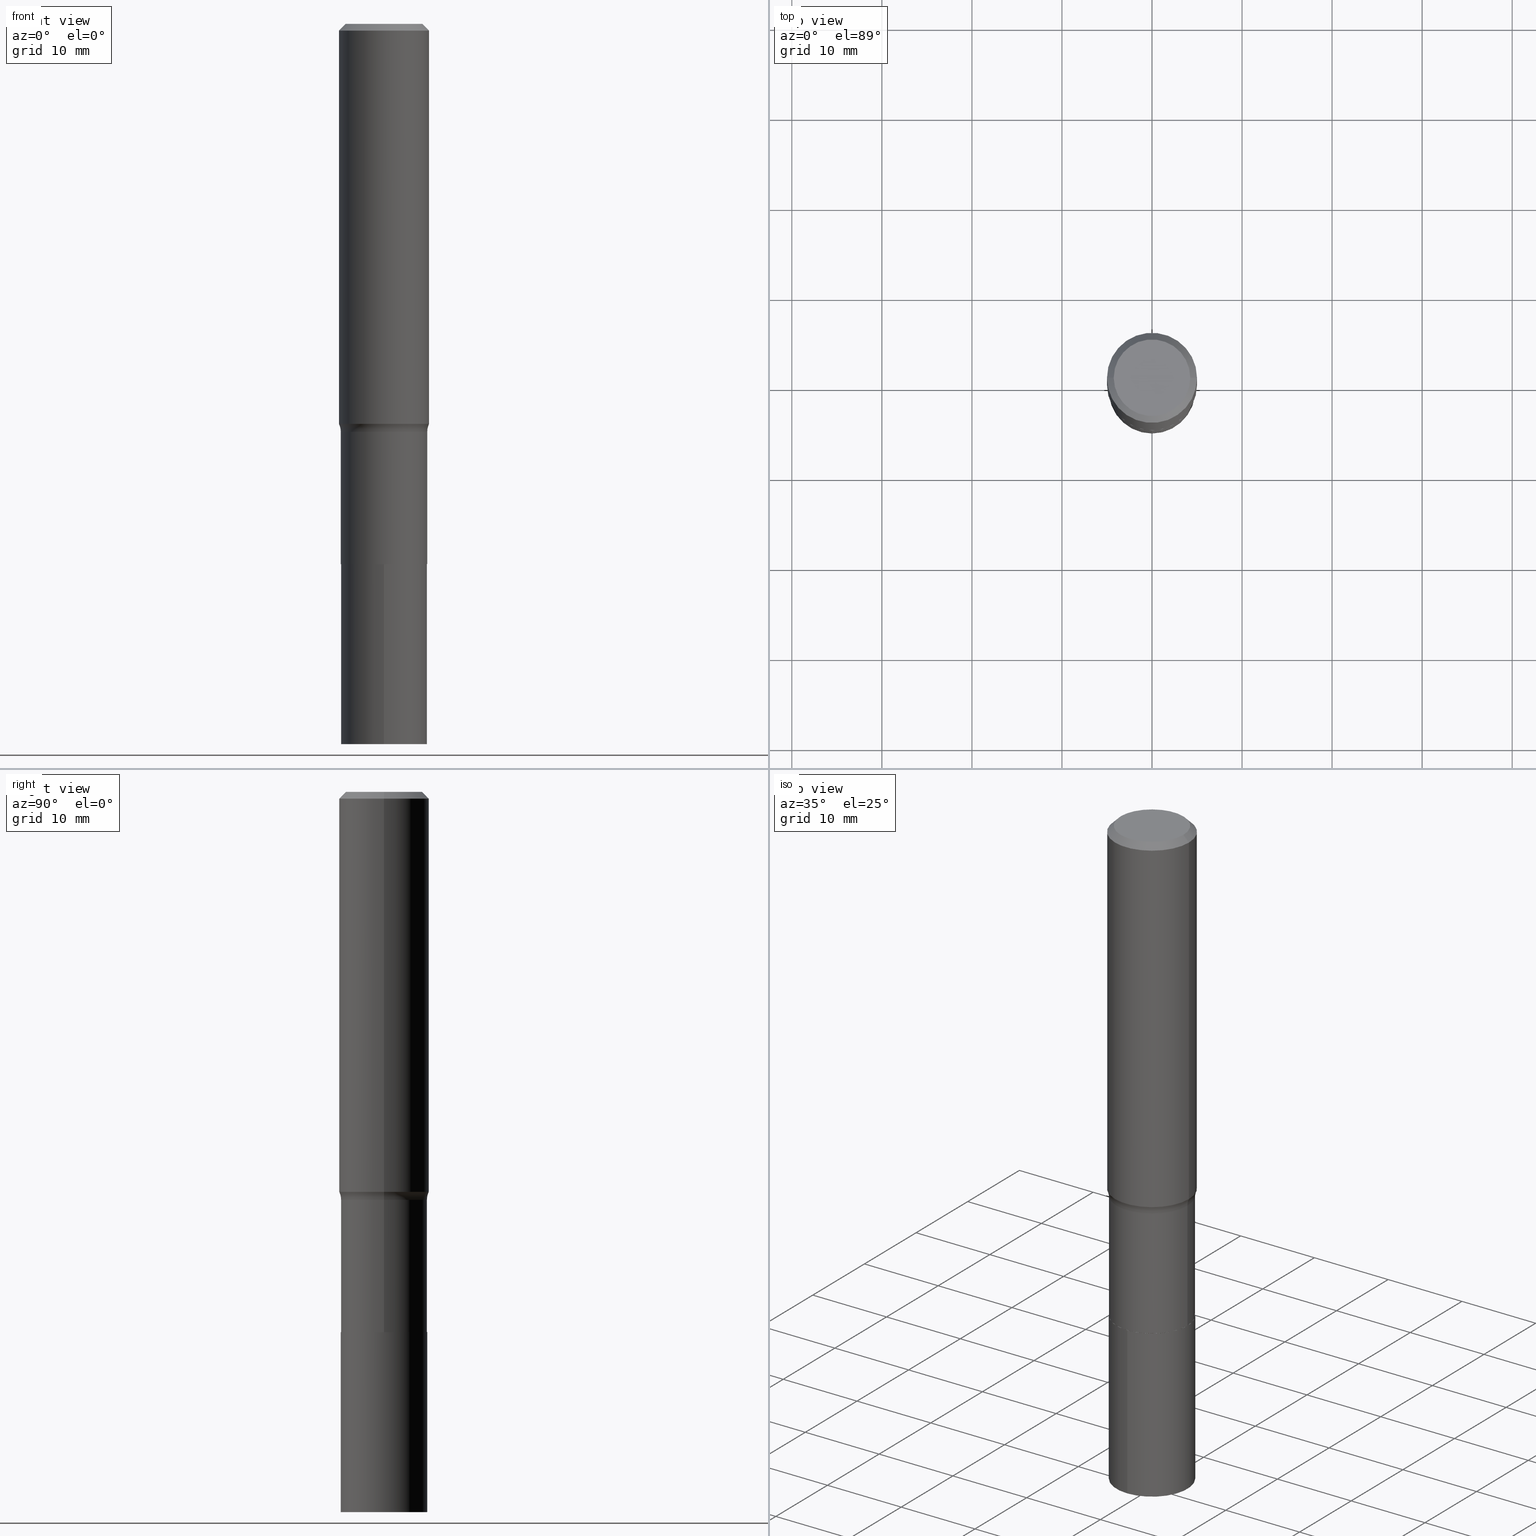
[diagram: canonical four-view strip — front | top / right | iso, engineering-drawing reading convention]
A machine part, canonical four-view strip (front | top / right | iso — engineering-drawing reading convention). The complete STEP part file that produces these views, byte-faithful:
ISO-10303-21;
HEADER;
FILE_DESCRIPTION (( 'STEP AP203' ),
    '1' );
FILE_NAME ('67143.STEP',
    '2024-04-19T16:01:06',
    ( '' ),
    ( '' ),
    'SwSTEP 2.0',
    'SolidWorks 2023',
    '' );
FILE_SCHEMA (( 'CONFIG_CONTROL_DESIGN' ));
ENDSEC;

DATA;
#1 = DIRECTION ( 'NONE',  ( -6.982962677686265922E-15, -1.000000000000000000, 2.890844437739961472E-15 ) ) ;
#2 = DATE_AND_TIME ( #66, #334 ) ;
#3 = PRODUCT_DEFINITION_SHAPE ( 'NONE', 'NONE',  #146 ) ;
#4 = CARTESIAN_POINT ( 'NONE',  ( -0.1889999999999999458, 1.342925770586588966E-15, -9.296787320581769859E-30 ) ) ;
#5 = ADVANCED_FACE ( 'NONE', ( #377 ), #376, .F. ) ;
#6 = CARTESIAN_POINT ( 'NONE',  ( 1.342925770586666472E-15, 0.1889999999999917579, -2.362600000000000477 ) ) ;
#7 = CIRCLE ( 'NONE', #270, 0.1884999999999999731 ) ;
#8 = CIRCLE ( 'NONE', #87, 0.1889999999999999736 ) ;
#9 = DIRECTION ( 'NONE',  ( 1.000000000000000000, -6.982962677686269077E-15, 0.000000000000000000 ) ) ;
#10 = CALENDAR_DATE ( 2024, 19, 4 ) ;
#11 = EDGE_CURVE ( 'NONE', #343, #61, #7, .T. ) ;
#12 = ADVANCED_FACE ( 'NONE', ( #380 ), #207, .F. ) ;
#13 = CONICAL_SURFACE ( 'NONE', #332, 0.1884999999999999731, 0.7853981633975507526 ) ;
#14 = AXIS2_PLACEMENT_3D ( 'NONE', #42, #322, #431 ) ;
#15 = VECTOR ( 'NONE', #267, 39.37007874015748143 ) ;
#16 = ORIENTED_EDGE ( 'NONE', *, *, #352, .T. ) ;
#17 = ORIENTED_EDGE ( 'NONE', *, *, #225, .T. ) ;
#18 = DIRECTION ( 'NONE',  ( 1.000000000000000000, -6.982962677686264344E-15, 0.000000000000000000 ) ) ;
#19 = CC_DESIGN_PERSON_AND_ORGANIZATION_ASSIGNMENT ( #242, #390, ( #250 ) ) ;
#20 = CIRCLE ( 'NONE', #14, 0.1889999999999999736 ) ;
#21 = ORIENTED_EDGE ( 'NONE', *, *, #189, .F. ) ;
#22 = CARTESIAN_POINT ( 'NONE',  ( -1.001697619218021790E-46, 1.430158722866389718E-32, 4.096137381448108366E-18 ) ) ;
#23 = EDGE_CURVE ( 'NONE', #237, #425, #371, .T. ) ;
#24 = EDGE_LOOP ( 'NONE', ( #428, #166, #412, #216 ) ) ;
#25 = DIRECTION ( 'NONE',  ( -2.445468806185136597E-29, 3.491481338843145583E-15, 1.000000000000000000 ) ) ;
#26 = DIRECTION ( 'NONE',  ( -2.445468806185136597E-29, 3.491481338843145583E-15, 1.000000000000000000 ) ) ;
#27 = CIRCLE ( 'NONE', #295, 0.1673224999999999851 ) ;
#28 = CARTESIAN_POINT ( 'NONE',  ( 0.000000000000000000, 0.000000000000000000, 0.000000000000000000 ) ) ;
#29 = DIRECTION ( 'NONE',  ( -2.446001586434224769E-29, 3.490718367202482243E-15, 1.000000000000000000 ) ) ;
#30 = CARTESIAN_POINT ( 'NONE',  ( 1.342925770586646750E-15, 0.1889999999999917302, -2.362600000000000477 ) ) ;
#31 = ORIENTED_EDGE ( 'NONE', *, *, #434, .T. ) ;
#32 = CARTESIAN_POINT ( 'NONE',  ( 7.220858017463202479E-31, -1.030947152326915623E-16, -0.02952750000000016473 ) ) ;
#33 = VERTEX_POINT ( 'NONE', #6 ) ;
#34 = DIRECTION ( 'NONE',  ( 2.445468806185136597E-29, -3.491481338843145583E-15, -1.000000000000000000 ) ) ;
#35 = AXIS2_PLACEMENT_3D ( 'NONE', #109, #328, #38 ) ;
#36 = CYLINDRICAL_SURFACE ( 'NONE', #272, 0.1889999999999999458 ) ;
#37 = DIRECTION ( 'NONE',  ( 1.000000000000000000, -6.982962677686266711E-15, 0.000000000000000000 ) ) ;
#38 = DIRECTION ( 'NONE',  ( -1.000000000000000000, 7.105427357600997914E-15, 0.000000000000000000 ) ) ;
#39 = UNCERTAINTY_MEASURE_WITH_UNIT (LENGTH_MEASURE( 1.000000000000000082E-05 ), #88, 'distance_accuracy_value', 'NONE');
#40 = APPROVAL ( #446, 'UNSPECIFIED' ) ;
#41 = FACE_OUTER_BOUND ( 'NONE', #104, .T. ) ;
#42 = CARTESIAN_POINT ( 'NONE',  ( 5.776441867089912090E-29, -8.247228070481394537E-15, -2.362100000000000311 ) ) ;
#43 = AXIS2_PLACEMENT_3D ( 'NONE', #324, #436, #48 ) ;
#44 = LOCAL_TIME ( 12, 1, 6.000000000000000000, #330 ) ;
#45 = EDGE_CURVE ( 'NONE', #193, #314, #223, .T. ) ;
#46 = AXIS2_PLACEMENT_3D ( 'NONE', #382, #379, #246 ) ;
#47 = PLANE ( 'NONE',  #341 ) ;
#48 = DIRECTION ( 'NONE',  ( -6.982962677686265922E-15, -1.000000000000000000, 2.890844437739961472E-15 ) ) ;
#49 = EDGE_CURVE ( 'NONE', #373, #229, #151, .T. ) ;
#50 = EDGE_LOOP ( 'NONE', ( #174, #462, #351, #414 ) ) ;
#51 = ORIENTED_EDGE ( 'NONE', *, *, #11, .F. ) ;
#52 = DIRECTION ( 'NONE',  ( -2.445468806185136597E-29, 3.491481338843145583E-15, 1.000000000000000000 ) ) ;
#53 = DIRECTION ( 'NONE',  ( -0.7071067811865457964, 2.468850131082238917E-15, -0.7071067811865492381 ) ) ;
#54 = AXIS2_PLACEMENT_3D ( 'NONE', #345, #26, #308 ) ;
#55 = APPROVAL_PERSON_ORGANIZATION ( #197, #40, #56 ) ;
#56 = APPROVAL_ROLE ( '' ) ;
#57 = CARTESIAN_POINT ( 'NONE',  ( -0.1673224999999999851, 1.219954130253505263E-15, 4.096137381439757534E-18 ) ) ;
#58 = PRODUCT_RELATED_PRODUCT_CATEGORY ( 'detail', '', ( #250 ) ) ;
#59 = ORIENTED_EDGE ( 'NONE', *, *, #403, .F. ) ;
#60 = LINE ( 'NONE', #30, #186 ) ;
#61 = VERTEX_POINT ( 'NONE', #74 ) ;
#62 = DATE_TIME_ROLE ( 'creation_date' ) ;
#63 = DIRECTION ( 'NONE',  ( 1.000000000000000000, -6.982962677686265922E-15, 0.000000000000000000 ) ) ;
#64 = CONICAL_SURFACE ( 'NONE', #133, 0.1884999999999999731, 0.7853981633975507526 ) ;
#65 = EDGE_LOOP ( 'NONE', ( #170, #138 ) ) ;
#66 = CALENDAR_DATE ( 2024, 19, 4 ) ;
#67 = DIRECTION ( 'NONE',  ( 2.445468806185136597E-29, -3.491481338843145583E-15, -1.000000000000000000 ) ) ;
#68 = ORIENTED_EDGE ( 'NONE', *, *, #175, .T. ) ;
#69 = APPROVAL_ROLE ( '' ) ;
#70 = DIRECTION ( 'NONE',  ( 0.7071067811866199593, -2.468850131083015945E-15, 0.7071067811864750752 ) ) ;
#71 = PERSON ( 'UNSPECIFIED', 'UNSPECIFIED', 'UNSPECIFIED', ('UNSPECIFIED'), ('UNSPECIFIED'), ('UNSPECIFIED') ) ;
#72 = EDGE_LOOP ( 'NONE', ( #226, #135, #281, #98 ) ) ;
#73 = CARTESIAN_POINT ( 'NONE',  ( 0.1884999999999999731, -9.565262275894677852E-15, -2.362600000000000033 ) ) ;
#74 = CARTESIAN_POINT ( 'NONE',  ( -0.1884999999999999731, -6.906951527068917560E-15, -2.362600000000000033 ) ) ;
#75 = APPROVAL_PERSON_ORGANIZATION ( #144, #252, #69 ) ;
#76 = APPROVAL_STATUS ( 'not_yet_approved' ) ;
#77 = DIRECTION ( 'NONE',  ( -2.446001586434225329E-29, 3.490718367202482243E-15, 1.000000000000000000 ) ) ;
#78 = DIRECTION ( 'NONE',  ( -6.982962677686265922E-15, -1.000000000000000000, 2.890844437739961472E-15 ) ) ;
#79 = CARTESIAN_POINT ( 'NONE',  ( -0.1968500000000001082, 1.398703375343757985E-15, -9.682923725166787881E-30 ) ) ;
#80 = DATE_AND_TIME ( #256, #44 ) ;
#81 = VECTOR ( 'NONE', #356, 39.37007874015748143 ) ;
#82 = AXIS2_PLACEMENT_3D ( 'NONE', #413, #160, #232 ) ;
#83 = ORIENTED_EDGE ( 'NONE', *, *, #406, .F. ) ;
#84 = DIRECTION ( 'NONE',  ( -2.445468806185136877E-29, 3.491481338843145188E-15, 1.000000000000000000 ) ) ;
#85 = DIRECTION ( 'NONE',  ( -2.446001586434225329E-29, 3.490718367202482243E-15, 1.000000000000000000 ) ) ;
#86 = AXIS2_PLACEMENT_3D ( 'NONE', #114, #188, #181 ) ;
#87 = AXIS2_PLACEMENT_3D ( 'NONE', #417, #309, #78 ) ;
#88 =( CONVERSION_BASED_UNIT ( 'INCH', #336 ) LENGTH_UNIT ( ) NAMED_UNIT ( #420 ) );
#89 = CARTESIAN_POINT ( 'NONE',  ( 5.777664601493003770E-29, -8.248973811150816829E-15, -2.362600000000000033 ) ) ;
#90 = ADVANCED_FACE ( 'NONE', ( #363 ), #289, .T. ) ;
#91 = CARTESIAN_POINT ( 'NONE',  ( -5.008488096090108951E-47, 7.150793614331948590E-33, 2.048068690724054183E-18 ) ) ;
#92 = CLOSED_SHELL ( 'NONE', ( #161, #12, #90, #358 ) ) ;
#93 = CARTESIAN_POINT ( 'NONE',  ( 5.777664601493003770E-29, -8.248973811150816829E-15, -2.362600000000000033 ) ) ;
#94 = AXIS2_PLACEMENT_3D ( 'NONE', #212, #139, #454 ) ;
#95 = ORIENTED_EDGE ( 'NONE', *, *, #378, .F. ) ;
#96 = DATE_AND_TIME ( #357, #386 ) ;
#97 = DIRECTION ( 'NONE',  ( 1.000000000000000000, -6.982962677686267499E-15, 4.876294436782262290E-29 ) ) ;
#98 = ORIENTED_EDGE ( 'NONE', *, *, #175, .F. ) ;
#99 = FACE_OUTER_BOUND ( 'NONE', #268, .T. ) ;
#100 = ORIENTED_EDGE ( 'NONE', *, *, #406, .T. ) ;
#101 = PERSON_AND_ORGANIZATION_ROLE ( 'creator' ) ;
#102 = DIRECTION ( 'NONE',  ( -6.982962677686265922E-15, -1.000000000000000000, 2.890844437739961472E-15 ) ) ;
#103 = ADVANCED_FACE ( 'NONE', ( #247 ), #36, .T. ) ;
#104 = EDGE_LOOP ( 'NONE', ( #121, #304, #203, #143 ) ) ;
#105 = APPLICATION_PROTOCOL_DEFINITION ( 'international standard', 'config_control_design', 1994, #404 ) ;
#106 = LINE ( 'NONE', #243, #299 ) ;
#107 = ORIENTED_EDGE ( 'NONE', *, *, #240, .F. ) ;
#108 = DIRECTION ( 'NONE',  ( -2.445468806185136597E-29, 3.491481338843145583E-15, 1.000000000000000000 ) ) ;
#109 = CARTESIAN_POINT ( 'NONE',  ( -0.2689999999999999059, -4.317093601167619304E-15, -1.783900000000000263 ) ) ;
#110 = CC_DESIGN_DATE_AND_TIME_ASSIGNMENT ( #361, #150, ( #254 ) ) ;
#111 = CIRCLE ( 'NONE', #369, 0.1968500000000000250 ) ;
#112 = CARTESIAN_POINT ( 'NONE',  ( 0.1968500000000001082, -1.374596203102542397E-15, 9.598753983154305062E-30 ) ) ;
#113 = PERSON_AND_ORGANIZATION_ROLE ( 'classification_officer' ) ;
#114 = CARTESIAN_POINT ( 'NONE',  ( 0.000000000000000000, 0.000000000000000000, 0.000000000000000000 ) ) ;
#115 = MANIFOLD_SOLID_BREP ( 'Body-Move/Copy2[1]', #92 ) ;
#116 = CYLINDRICAL_SURFACE ( 'NONE', #238, 0.1889999999999999736 ) ;
#117 = CC_DESIGN_APPROVAL ( #40, ( #254 ) ) ;
#118 = ORIENTED_EDGE ( 'NONE', *, *, #11, .T. ) ;
#119 = CC_DESIGN_PERSON_AND_ORGANIZATION_ASSIGNMENT ( #329, #113, ( #254 ) ) ;
#120 = MANIFOLD_SOLID_BREP ( 'Body-Move/Copy2[2]', #217 ) ;
#121 = ORIENTED_EDGE ( 'NONE', *, *, #364, .F. ) ;
#122 = AXIS2_PLACEMENT_3D ( 'NONE', #22, #407, #162 ) ;
#123 = DIRECTION ( 'NONE',  ( 1.000000000000000000, -6.982962677686269077E-15, 0.000000000000000000 ) ) ;
#124 = EDGE_CURVE ( 'NONE', #310, #354, #20, .T. ) ;
#125 = LINE ( 'NONE', #375, #15 ) ;
#126 = EDGE_CURVE ( 'NONE', #354, #229, #294, .T. ) ;
#127 = ORIENTED_EDGE ( 'NONE', *, *, #240, .T. ) ;
#128 = DATE_AND_TIME ( #439, #397 ) ;
#129 = FACE_OUTER_BOUND ( 'NONE', #337, .T. ) ;
#130 = EDGE_LOOP ( 'NONE', ( #317, #257, #31, #95 ) ) ;
#131 = AXIS2_PLACEMENT_3D ( 'NONE', #134, #429, #63 ) ;
#132 = CARTESIAN_POINT ( 'NONE',  ( -0.1968500000000000250, 1.271501487869850120E-15, -0.02952750000000016473 ) ) ;
#133 = AXIS2_PLACEMENT_3D ( 'NONE', #303, #25, #18 ) ;
#134 = CARTESIAN_POINT ( 'NONE',  ( 7.220858017463202479E-31, -1.030947152326915623E-16, -0.02952750000000016473 ) ) ;
#135 = ORIENTED_EDGE ( 'NONE', *, *, #290, .T. ) ;
#136 = EDGE_CURVE ( 'NONE', #195, #177, #219, .T. ) ;
#137 = FACE_OUTER_BOUND ( 'NONE', #130, .T. ) ;
#138 = ORIENTED_EDGE ( 'NONE', *, *, #352, .F. ) ;
#139 = DIRECTION ( 'NONE',  ( -2.438088387897960049E-29, 3.491481338843145188E-15, 1.000000000000000000 ) ) ;
#140 = ORIENTED_EDGE ( 'NONE', *, *, #444, .T. ) ;
#141 = AXIS2_PLACEMENT_3D ( 'NONE', #149, #152, #9 ) ;
#142 = DIRECTION ( 'NONE',  ( 1.000000000000000000, -6.982962677686266711E-15, 4.876176775795935793E-29 ) ) ;
#143 = ORIENTED_EDGE ( 'NONE', *, *, #348, .F. ) ;
#144 = PERSON_AND_ORGANIZATION ( #71, #159 ) ;
#145 = DIRECTION ( 'NONE',  ( -2.445468806185136597E-29, 3.491481338843145583E-15, 1.000000000000000000 ) ) ;
#146 = PRODUCT_DEFINITION ( 'UNKNOWN', '', #327, #367 ) ;
#147 = DIRECTION ( 'NONE',  ( -6.982962677686265922E-15, -1.000000000000000000, 2.890844437739961472E-15 ) ) ;
#148 = APPROVAL_DATE_TIME ( #80, #393 ) ;
#149 = CARTESIAN_POINT ( 'NONE',  ( 4.362471803353666187E-29, -6.228453560362288135E-15, -1.783900000000000263 ) ) ;
#150 = DATE_TIME_ROLE ( 'classification_date' ) ;
#151 = CIRCLE ( 'NONE', #141, 0.1889999999999999181 ) ;
#152 = DIRECTION ( 'NONE',  ( -2.445468806185136597E-29, 3.491481338843145583E-15, 1.000000000000000000 ) ) ;
#153 = DIRECTION ( 'NONE',  ( -6.982962677686265922E-15, -1.000000000000000000, 2.890844437739961472E-15 ) ) ;
#154 = CC_DESIGN_PERSON_AND_ORGANIZATION_ASSIGNMENT ( #311, #101, ( #146 ) ) ;
#155 = VECTOR ( 'NONE', #227, 39.37007874015748143 ) ;
#156 = ORIENTED_EDGE ( 'NONE', *, *, #378, .T. ) ;
#157 = ADVANCED_FACE ( 'NONE', ( #251 ), #185, .T. ) ;
#158 = ORIENTED_EDGE ( 'NONE', *, *, #214, .T. ) ;
#159 = ORGANIZATION ( 'UNSPECIFIED', 'UNSPECIFIED', '' ) ;
#160 = DIRECTION ( 'NONE',  ( -6.982962677686266711E-15, -1.000000000000000000, 3.491481338843145583E-15 ) ) ;
#161 = ADVANCED_FACE ( 'NONE', ( #222 ), #116, .T. ) ;
#162 = DIRECTION ( 'NONE',  ( 1.000000000000000000, -6.982962677686267499E-15, 4.876294436782262290E-29 ) ) ;
#163 = EDGE_LOOP ( 'NONE', ( #51, #421 ) ) ;
#164 = DIRECTION ( 'NONE',  ( 2.446001586434224769E-29, -3.490718367202482243E-15, -1.000000000000000000 ) ) ;
#165 =( LENGTH_UNIT ( ) NAMED_UNIT ( * ) SI_UNIT ( $, .METRE. ) );
#166 = ORIENTED_EDGE ( 'NONE', *, *, #126, .T. ) ;
#167 = VECTOR ( 'NONE', #395, 39.37007874015748143 ) ;
#168 = AXIS2_PLACEMENT_3D ( 'NONE', #467, #172, #178 ) ;
#169 = DIRECTION ( 'NONE',  ( 0.7071067811865457964, -7.319954787623249734E-15, -0.7071067811865492381 ) ) ;
#170 = ORIENTED_EDGE ( 'NONE', *, *, #45, .F. ) ;
#171 = EDGE_CURVE ( 'NONE', #33, #416, #347, .T. ) ;
#172 = DIRECTION ( 'NONE',  ( 0.000000000000000000, 0.000000000000000000, 1.000000000000000000 ) ) ;
#173 = LINE ( 'NONE', #461, #443 ) ;
#174 = ORIENTED_EDGE ( 'NONE', *, *, #389, .T. ) ;
#175 = EDGE_CURVE ( 'NONE', #193, #416, #399, .T. ) ;
#176 = DIRECTION ( 'NONE',  ( 1.000000000000000000, -6.982962677686265922E-15, 0.000000000000000000 ) ) ;
#177 = VERTEX_POINT ( 'NONE', #221 ) ;
#178 = DIRECTION ( 'NONE',  ( 1.000000000000000000, 0.000000000000000000, 0.000000000000000000 ) ) ;
#179 = AXIS2_PLACEMENT_3D ( 'NONE', #293, #77, #1 ) ;
#180 = DIRECTION ( 'NONE',  ( -1.000000000000000000, 6.982962677686265922E-15, 0.000000000000000000 ) ) ;
#181 = DIRECTION ( 'NONE',  ( 1.000000000000000000, -6.982962677686266711E-15, 4.876176775795935793E-29 ) ) ;
#182 = COORDINATED_UNIVERSAL_TIME_OFFSET ( 5, 0, .BEHIND. ) ;
#183 = CARTESIAN_POINT ( 'NONE',  ( -1.319779946082627116E-15, -0.1890000000000109925, -3.149600000000000399 ) ) ;
#184 = PERSON_AND_ORGANIZATION ( #71, #159 ) ;
#185 = CYLINDRICAL_SURFACE ( 'NONE', #86, 0.1968500000000001082 ) ;
#186 = VECTOR ( 'NONE', #394, 39.37007874015748143 ) ;
#187 = APPROVAL_PERSON_ORGANIZATION ( #460, #393, #331 ) ;
#188 = DIRECTION ( 'NONE',  ( -2.445468806185136597E-29, 3.491481338843145583E-15, 1.000000000000000000 ) ) ;
#189 = EDGE_CURVE ( 'NONE', #237, #229, #291, .T. ) ;
#190 = PERSON_AND_ORGANIZATION ( #71, #159 ) ;
#191 = CARTESIAN_POINT ( 'NONE',  ( -0.1889999999999999736, -5.894915044835252764E-15, -2.362100000000000311 ) ) ;
#192 = CIRCLE ( 'NONE', #131, 0.1968500000000000250 ) ;
#193 = VERTEX_POINT ( 'NONE', #183 ) ;
#194 = FACE_OUTER_BOUND ( 'NONE', #465, .T. ) ;
#195 = VERTEX_POINT ( 'NONE', #253 ) ;
#196 = ADVANCED_FACE ( 'NONE', ( #41 ), #13, .T. ) ;
#197 = PERSON_AND_ORGANIZATION ( #71, #159 ) ;
#198 = CARTESIAN_POINT ( 'NONE',  ( 0.1673224999999999851, -1.300749711163072397E-15, 4.096137381456741925E-18 ) ) ;
#199 = AXIS2_PLACEMENT_3D ( 'NONE', #32, #67, #316 ) ;
#200 = CC_DESIGN_APPROVAL ( #252, ( #146 ) ) ;
#201 = ORIENTED_EDGE ( 'NONE', *, *, #302, .F. ) ;
#202 = CARTESIAN_POINT ( 'NONE',  ( 0.1889999999999999181, -7.548233506444992953E-15, -1.783900000000000263 ) ) ;
#203 = ORIENTED_EDGE ( 'NONE', *, *, #315, .T. ) ;
#204 = DIRECTION ( 'NONE',  ( 1.000000000000000000, -6.982962677686265922E-15, 4.883557194083112340E-29 ) ) ;
#205 = ADVANCED_FACE ( 'NONE', ( #346 ), #396, .T. ) ;
#206 = PLANE ( 'NONE',  #365 ) ;
#207 = PLANE ( 'NONE',  #424 ) ;
#208 = AXIS2_PLACEMENT_3D ( 'NONE', #468, #284, #102 ) ;
#209 = CIRCLE ( 'NONE', #261, 0.1968500000000002192 ) ;
#210 = CARTESIAN_POINT ( 'NONE',  ( 4.362471803353666187E-29, -6.228453560362288135E-15, -1.783900000000000263 ) ) ;
#211 = ORIENTED_EDGE ( 'NONE', *, *, #249, .T. ) ;
#212 = CARTESIAN_POINT ( 'NONE',  ( 5.777664601493003770E-29, -8.248973811150816829E-15, -2.362600000000000033 ) ) ;
#213 = ORIENTED_EDGE ( 'NONE', *, *, #403, .T. ) ;
#214 = EDGE_CURVE ( 'NONE', #177, #425, #192, .T. ) ;
#215 = FACE_OUTER_BOUND ( 'NONE', #297, .T. ) ;
#216 = ORIENTED_EDGE ( 'NONE', *, *, #434, .F. ) ;
#217 = CLOSED_SHELL ( 'NONE', ( #456, #205, #157, #5, #103, #264, #233, #279, #321, #423, #231, #196 ) ) ;
#218 = DIRECTION ( 'NONE',  ( -2.445468806185136597E-29, 3.491481338843145583E-15, 1.000000000000000000 ) ) ;
#219 = LINE ( 'NONE', #112, #401 ) ;
#220 = COORDINATED_UNIVERSAL_TIME_OFFSET ( 5, 0, .BEHIND. ) ;
#221 = CARTESIAN_POINT ( 'NONE',  ( 0.1968500000000000250, -1.477690918335233294E-15, -0.02952750000000016473 ) ) ;
#222 = FACE_OUTER_BOUND ( 'NONE', #72, .T. ) ;
#223 = CIRCLE ( 'NONE', #43, 0.1889999999999999736 ) ;
#224 = LOCAL_TIME ( 12, 1, 6.000000000000000000, #220 ) ;
#225 = EDGE_CURVE ( 'NONE', #368, #405, #27, .T. ) ;
#226 = ORIENTED_EDGE ( 'NONE', *, *, #45, .T. ) ;
#227 = DIRECTION ( 'NONE',  ( -2.446001586434225329E-29, 3.490718367202482243E-15, 1.000000000000000000 ) ) ;
#228 = EDGE_LOOP ( 'NONE', ( #259, #385 ) ) ;
#229 = VERTEX_POINT ( 'NONE', #234 ) ;
#230 = DIRECTION ( 'NONE',  ( -1.000000000000000000, 6.982962677686265922E-15, -4.876176775795935793E-29 ) ) ;
#231 = ADVANCED_FACE ( 'NONE', ( #422 ), #387, .F. ) ;
#232 = DIRECTION ( 'NONE',  ( 1.000000000000000000, -6.982962677686259611E-15, 0.000000000000000000 ) ) ;
#233 = ADVANCED_FACE ( 'NONE', ( #99 ), #307, .F. ) ;
#234 = CARTESIAN_POINT ( 'NONE',  ( -0.1889999999999999181, -5.894915044835252764E-15, -1.783900000000000263 ) ) ;
#235 = DIRECTION ( 'NONE',  ( 1.000000000000000000, -6.982962677686264344E-15, 0.000000000000000000 ) ) ;
#236 = MECHANICAL_CONTEXT ( 'NONE', #404, 'mechanical' ) ;
#237 = VERTEX_POINT ( 'NONE', #274 ) ;
#238 = AXIS2_PLACEMENT_3D ( 'NONE', #408, #85, #147 ) ;
#239 = CARTESIAN_POINT ( 'NONE',  ( -1.001697619218021790E-46, 1.430158722866389718E-32, 4.096137381448108366E-18 ) ) ;
#240 = EDGE_CURVE ( 'NONE', #237, #195, #248, .T. ) ;
#241 = ORIENTED_EDGE ( 'NONE', *, *, #136, .T. ) ;
#242 = PERSON_AND_ORGANIZATION ( #71, #159 ) ;
#243 = CARTESIAN_POINT ( 'NONE',  ( 0.1884999999999999731, -9.565262275894677852E-15, -2.362600000000000033 ) ) ;
#244 = ORIENTED_EDGE ( 'NONE', *, *, #189, .T. ) ;
#245 = APPLICATION_PROTOCOL_DEFINITION ( 'international standard', 'config_control_design', 1994, #372 ) ;
#246 = DIRECTION ( 'NONE',  ( 1.000000000000000000, -6.982962677686265922E-15, 0.000000000000000000 ) ) ;
#247 = FACE_OUTER_BOUND ( 'NONE', #24, .T. ) ;
#248 = CIRCLE ( 'NONE', #46, 0.1968500000000002192 ) ;
#249 = EDGE_CURVE ( 'NONE', #425, #177, #111, .T. ) ;
#250 = PRODUCT ( '67143', '67143', '', ( #236 ) ) ;
#251 = FACE_OUTER_BOUND ( 'NONE', #50, .T. ) ;
#252 = APPROVAL ( #318, 'UNSPECIFIED' ) ;
#253 = CARTESIAN_POINT ( 'NONE',  ( 0.1968500000000002470, -7.482384981661755813E-15, -1.749340232929025296 ) ) ;
#254 = SECURITY_CLASSIFICATION ( '', '', #325 ) ;
#255 = EDGE_CURVE ( 'NONE', #416, #33, #432, .T. ) ;
#256 = CALENDAR_DATE ( 2024, 19, 4 ) ;
#257 = ORIENTED_EDGE ( 'NONE', *, *, #348, .T. ) ;
#258 = DIRECTION ( 'NONE',  ( -2.445468806185136597E-29, 3.491481338843145583E-15, 1.000000000000000000 ) ) ;
#259 = ORIENTED_EDGE ( 'NONE', *, *, #255, .T. ) ;
#260 =( NAMED_UNIT ( * ) SI_UNIT ( $, .STERADIAN. ) SOLID_ANGLE_UNIT ( ) );
#261 = AXIS2_PLACEMENT_3D ( 'NONE', #374, #52, #452 ) ;
#262 = ORIENTED_EDGE ( 'NONE', *, *, #49, .T. ) ;
#263 = DIRECTION ( 'NONE',  ( -2.445468806185136597E-29, 3.491481338843145583E-15, 1.000000000000000000 ) ) ;
#264 = ADVANCED_FACE ( 'NONE', ( #137 ), #359, .T. ) ;
#265 = EDGE_LOOP ( 'NONE', ( #409, #127, #241, #442 ) ) ;
#266 = APPROVAL_DATE_TIME ( #128, #40 ) ;
#267 = DIRECTION ( 'NONE',  ( -0.7071067811866199593, 7.493145998870616062E-15, 0.7071067811864750752 ) ) ;
#268 = EDGE_LOOP ( 'NONE', ( #21, #335, #213, #262 ) ) ;
#269 = CARTESIAN_POINT ( 'NONE',  ( 0.1889999999999999458, -1.319779946082704030E-15, 9.215974106254316519E-30 ) ) ;
#270 = AXIS2_PLACEMENT_3D ( 'NONE', #455, #276, #235 ) ;
#271 = EDGE_LOOP ( 'NONE', ( #107, #244, #156, #59 ) ) ;
#272 = AXIS2_PLACEMENT_3D ( 'NONE', #362, #258, #323 ) ;
#273 = AXIS2_PLACEMENT_3D ( 'NONE', #447, #450, #123 ) ;
#274 = CARTESIAN_POINT ( 'NONE',  ( -0.1968500000000002470, -4.709085403215454840E-15, -1.749340232929025296 ) ) ;
#275 = FACE_OUTER_BOUND ( 'NONE', #228, .T. ) ;
#276 = DIRECTION ( 'NONE',  ( -2.445468806185136597E-29, 3.491481338843145583E-15, 1.000000000000000000 ) ) ;
#277 = DIRECTION ( 'NONE',  ( -2.445468806185136597E-29, 3.491481338843145583E-15, 1.000000000000000000 ) ) ;
#278 = DIRECTION ( 'NONE',  ( -6.982962677686265922E-15, -1.000000000000000000, 3.490718367202482243E-15 ) ) ;
#279 = ADVANCED_FACE ( 'NONE', ( #463 ), #350, .T. ) ;
#280 = CARTESIAN_POINT ( 'NONE',  ( 1.342925770586656414E-15, 0.1889999999999889824, -3.149600000000001288 ) ) ;
#281 = ORIENTED_EDGE ( 'NONE', *, *, #255, .F. ) ;
#282 = CIRCLE ( 'NONE', #426, 0.1889999999999999736 ) ;
#283 = CIRCLE ( 'NONE', #82, 0.08000000000000000167 ) ;
#284 = DIRECTION ( 'NONE',  ( -2.446001586434225329E-29, 3.490718367202482243E-15, 1.000000000000000000 ) ) ;
#285 = EDGE_LOOP ( 'NONE', ( #451, #16, #68, #338 ) ) ;
#286 = COORDINATED_UNIVERSAL_TIME_OFFSET ( 5, 0, .BEHIND. ) ;
#287 = DIRECTION ( 'NONE',  ( -2.445468806185136597E-29, 3.491481338843145583E-15, 1.000000000000000000 ) ) ;
#288 = CARTESIAN_POINT ( 'NONE',  ( 5.777664601493003770E-29, -8.248973811150816829E-15, -2.362600000000000033 ) ) ;
#289 = CYLINDRICAL_SURFACE ( 'NONE', #179, 0.1889999999999999736 ) ;
#290 = EDGE_CURVE ( 'NONE', #314, #33, #60, .T. ) ;
#291 = CIRCLE ( 'NONE', #35, 0.08000000000000000167 ) ;
#292 = CIRCLE ( 'NONE', #273, 0.1889999999999999181 ) ;
#293 = CARTESIAN_POINT ( 'NONE',  ( 5.777664601493003770E-29, -8.248973811150816829E-15, -2.362600000000000033 ) ) ;
#294 = LINE ( 'NONE', #4, #167 ) ;
#295 = AXIS2_PLACEMENT_3D ( 'NONE', #239, #108, #97 ) ;
#296 = VECTOR ( 'NONE', #84, 39.37007874015748143 ) ;
#297 = EDGE_LOOP ( 'NONE', ( #201, #440, #100, #211 ) ) ;
#298 = DIRECTION ( 'NONE',  ( 2.438088387897960049E-29, -3.491481338843145188E-15, -1.000000000000000000 ) ) ;
#299 = VECTOR ( 'NONE', #70, 39.37007874015748143 ) ;
#300 = CC_DESIGN_SECURITY_CLASSIFICATION ( #254, ( #327 ) ) ;
#301 = COORDINATED_UNIVERSAL_TIME_OFFSET ( 5, 0, .BEHIND. ) ;
#302 = EDGE_CURVE ( 'NONE', #405, #177, #173, .T. ) ;
#303 = CARTESIAN_POINT ( 'NONE',  ( 5.777664601493003770E-29, -8.248973811150816829E-15, -2.362600000000000033 ) ) ;
#304 = ORIENTED_EDGE ( 'NONE', *, *, #370, .T. ) ;
#305 = LINE ( 'NONE', #132, #333 ) ;
#306 = DIRECTION ( 'NONE',  ( -2.445468806185136597E-29, 3.491481338843145583E-15, 1.000000000000000000 ) ) ;
#307 = TOROIDAL_SURFACE ( 'NONE', #453, 0.2689999999999999059, 0.08000000000000000167 ) ;
#308 = DIRECTION ( 'NONE',  ( 1.000000000000000000, -6.982962677686265922E-15, 4.883557194083112340E-29 ) ) ;
#309 = DIRECTION ( 'NONE',  ( -2.446001586434225329E-29, 3.490718367202482243E-15, 1.000000000000000000 ) ) ;
#310 = VERTEX_POINT ( 'NONE', #391 ) ;
#311 = PERSON_AND_ORGANIZATION ( #71, #159 ) ;
#312 = ADVANCED_BREP_SHAPE_REPRESENTATION ( '67143', ( #115, #120, #168 ), #402 ) ;
#313 = DIRECTION ( 'NONE',  ( 1.000000000000000000, -6.982962677686266711E-15, 4.876176775795935793E-29 ) ) ;
#314 = VERTEX_POINT ( 'NONE', #280 ) ;
#315 = EDGE_CURVE ( 'NONE', #343, #310, #106, .T. ) ;
#316 = DIRECTION ( 'NONE',  ( -1.000000000000000000, 6.982962677686265922E-15, 0.000000000000000000 ) ) ;
#317 = ORIENTED_EDGE ( 'NONE', *, *, #126, .F. ) ;
#318 = APPROVAL_STATUS ( 'not_yet_approved' ) ;
#319 = CC_DESIGN_APPROVAL ( #393, ( #327 ) ) ;
#320 = CARTESIAN_POINT ( 'NONE',  ( 5.776441867089912090E-29, -8.247228070481394537E-15, -2.362100000000000311 ) ) ;
#321 = ADVANCED_FACE ( 'NONE', ( #215 ), #340, .T. ) ;
#322 = DIRECTION ( 'NONE',  ( -2.445468806185136597E-29, 3.491481338843145583E-15, 1.000000000000000000 ) ) ;
#323 = DIRECTION ( 'NONE',  ( 1.000000000000000000, -6.982962677686266711E-15, 4.876176775795935793E-29 ) ) ;
#324 = CARTESIAN_POINT ( 'NONE',  ( 7.702667850016740557E-29, -1.099616916613917186E-14, -3.149600000000000843 ) ) ;
#325 = SECURITY_CLASSIFICATION_LEVEL ( 'unclassified' ) ;
#326 = AXIS2_PLACEMENT_3D ( 'NONE', #28, #457, #313 ) ;
#327 = PRODUCT_DEFINITION_FORMATION_WITH_SPECIFIED_SOURCE ( 'ANY', '', #250, .NOT_KNOWN. ) ;
#328 = DIRECTION ( 'NONE',  ( 7.105427357601001859E-15, 1.000000000000000000, -3.491481338843145583E-15 ) ) ;
#329 = PERSON_AND_ORGANIZATION ( #71, #159 ) ;
#330 = COORDINATED_UNIVERSAL_TIME_OFFSET ( 5, 0, .BEHIND. ) ;
#331 = APPROVAL_ROLE ( '' ) ;
#332 = AXIS2_PLACEMENT_3D ( 'NONE', #400, #287, #419 ) ;
#333 = VECTOR ( 'NONE', #53, 39.37007874015748143 ) ;
#334 = LOCAL_TIME ( 12, 1, 6.000000000000000000, #182 ) ;
#335 = ORIENTED_EDGE ( 'NONE', *, *, #389, .F. ) ;
#336 = LENGTH_MEASURE_WITH_UNIT ( LENGTH_MEASURE( 0.02539999999999999897 ), #165 );
#337 = EDGE_LOOP ( 'NONE', ( #17, #140 ) ) ;
#338 = ORIENTED_EDGE ( 'NONE', *, *, #171, .F. ) ;
#339 = LINE ( 'NONE', #269, #296 ) ;
#340 = CONICAL_SURFACE ( 'NONE', #464, 0.1968500000000000250, 0.7853981633974458365 ) ;
#341 = AXIS2_PLACEMENT_3D ( 'NONE', #91, #298, #230 ) ;
#342 = CARTESIAN_POINT ( 'NONE',  ( -0.1968500000000000250, -1.706738371552194369E-15, -0.02952750000000016473 ) ) ;
#343 = VERTEX_POINT ( 'NONE', #73 ) ;
#344 = CARTESIAN_POINT ( 'NONE',  ( -1.319779946082646246E-15, -0.1890000000000082447, -2.362599999999999589 ) ) ;
#345 = CARTESIAN_POINT ( 'NONE',  ( 4.362471803353666187E-29, -6.228453560362288135E-15, -1.783900000000000263 ) ) ;
#346 = FACE_OUTER_BOUND ( 'NONE', #438, .T. ) ;
#347 = CIRCLE ( 'NONE', #437, 0.1889999999999999736 ) ;
#348 = EDGE_CURVE ( 'NONE', #354, #310, #282, .T. ) ;
#349 = CARTESIAN_POINT ( 'NONE',  ( 1.344258491356782545E-29, -2.010177326592616003E-14, -3.149600000000000843 ) ) ;
#350 = CYLINDRICAL_SURFACE ( 'NONE', #384, 0.1968500000000001082 ) ;
#351 = ORIENTED_EDGE ( 'NONE', *, *, #214, .F. ) ;
#352 = EDGE_CURVE ( 'NONE', #314, #193, #8, .T. ) ;
#353 = CARTESIAN_POINT ( 'NONE',  ( 7.220858017463202479E-31, -1.030947152326915623E-16, -0.02952750000000016473 ) ) ;
#354 = VERTEX_POINT ( 'NONE', #191 ) ;
#355 = CARTESIAN_POINT ( 'NONE',  ( 7.220858017463202479E-31, -1.030947152326915623E-16, -0.02952750000000016473 ) ) ;
#356 = DIRECTION ( 'NONE',  ( -2.445468806185136877E-29, 3.491481338843145188E-15, 1.000000000000000000 ) ) ;
#357 = CALENDAR_DATE ( 2024, 19, 4 ) ;
#358 = ADVANCED_FACE ( 'NONE', ( #275 ), #206, .F. ) ;
#359 = CYLINDRICAL_SURFACE ( 'NONE', #326, 0.1889999999999999458 ) ;
#360 = DIRECTION ( 'NONE',  ( -2.446001586434225329E-29, 3.490718367202482243E-15, 1.000000000000000000 ) ) ;
#361 = DATE_AND_TIME ( #10, #224 ) ;
#362 = CARTESIAN_POINT ( 'NONE',  ( 0.000000000000000000, 0.000000000000000000, 0.000000000000000000 ) ) ;
#363 = FACE_OUTER_BOUND ( 'NONE', #285, .T. ) ;
#364 = EDGE_CURVE ( 'NONE', #61, #354, #125, .T. ) ;
#365 = AXIS2_PLACEMENT_3D ( 'NONE', #89, #164, #459 ) ;
#366 = CC_DESIGN_PERSON_AND_ORGANIZATION_ASSIGNMENT ( #184, #398, ( #327 ) ) ;
#367 = DESIGN_CONTEXT ( 'detailed design', #372, 'design' ) ;
#368 = VERTEX_POINT ( 'NONE', #57 ) ;
#369 = AXIS2_PLACEMENT_3D ( 'NONE', #353, #145, #176 ) ;
#370 = EDGE_CURVE ( 'NONE', #61, #343, #411, .T. ) ;
#371 = LINE ( 'NONE', #79, #81 ) ;
#372 = APPLICATION_CONTEXT ( 'configuration controlled 3d designs of mechanical parts and assemblies' ) ;
#373 = VERTEX_POINT ( 'NONE', #202 ) ;
#374 = CARTESIAN_POINT ( 'NONE',  ( 4.277956971032571973E-29, -6.107788778559213416E-15, -1.749340232929025296 ) ) ;
#375 = CARTESIAN_POINT ( 'NONE',  ( -0.1884999999999999731, -6.909600754243027184E-15, -2.362600000000000033 ) ) ;
#376 = TOROIDAL_SURFACE ( 'NONE', #54, 0.2689999999999999059, 0.08000000000000000167 ) ;
#377 = FACE_OUTER_BOUND ( 'NONE', #271, .T. ) ;
#378 = EDGE_CURVE ( 'NONE', #229, #373, #292, .T. ) ;
#379 = DIRECTION ( 'NONE',  ( -2.445468806185136597E-29, 3.491481338843145583E-15, 1.000000000000000000 ) ) ;
#380 = FACE_OUTER_BOUND ( 'NONE', #65, .T. ) ;
#381 = APPROVAL_DATE_TIME ( #96, #252 ) ;
#382 = CARTESIAN_POINT ( 'NONE',  ( 4.277956971032571973E-29, -6.107788778559213416E-15, -1.749340232929025296 ) ) ;
#383 = CC_DESIGN_DATE_AND_TIME_ASSIGNMENT ( #2, #62, ( #146 ) ) ;
#384 = AXIS2_PLACEMENT_3D ( 'NONE', #427, #277, #142 ) ;
#385 = ORIENTED_EDGE ( 'NONE', *, *, #171, .T. ) ;
#386 = LOCAL_TIME ( 12, 1, 6.000000000000000000, #286 ) ;
#387 = PLANE ( 'NONE',  #94 ) ;
#388 = ORIENTED_EDGE ( 'NONE', *, *, #315, .F. ) ;
#389 = EDGE_CURVE ( 'NONE', #195, #237, #209, .T. ) ;
#390 = PERSON_AND_ORGANIZATION_ROLE ( 'design_owner' ) ;
#391 = CARTESIAN_POINT ( 'NONE',  ( 0.1889999999999999736, -9.567008016564100144E-15, -2.362100000000000311 ) ) ;
#392 = ORIENTED_EDGE ( 'NONE', *, *, #444, .F. ) ;
#393 = APPROVAL ( #76, 'UNSPECIFIED' ) ;
#394 = DIRECTION ( 'NONE',  ( -2.446001586434225329E-29, 3.490718367202482243E-15, 1.000000000000000000 ) ) ;
#395 = DIRECTION ( 'NONE',  ( -2.445468806185136877E-29, 3.491481338843145188E-15, 1.000000000000000000 ) ) ;
#396 = CONICAL_SURFACE ( 'NONE', #199, 0.1968500000000000250, 0.7853981633974458365 ) ;
#397 = LOCAL_TIME ( 12, 1, 6.000000000000000000, #301 ) ;
#398 = PERSON_AND_ORGANIZATION_ROLE ( 'design_supplier' ) ;
#399 = LINE ( 'NONE', #430, #155 ) ;
#400 = CARTESIAN_POINT ( 'NONE',  ( 5.777664601493003770E-29, -8.248973811150816829E-15, -2.362600000000000033 ) ) ;
#401 = VECTOR ( 'NONE', #435, 39.37007874015748143 ) ;
#402 =( GEOMETRIC_REPRESENTATION_CONTEXT ( 3 ) GLOBAL_UNCERTAINTY_ASSIGNED_CONTEXT ( ( #39 ) ) GLOBAL_UNIT_ASSIGNED_CONTEXT ( ( #88, #441, #260 ) ) REPRESENTATION_CONTEXT ( 'NONE', 'WORKASPACE' ) );
#403 = EDGE_CURVE ( 'NONE', #195, #373, #283, .T. ) ;
#404 = APPLICATION_CONTEXT ( 'configuration controlled 3d designs of mechanical parts and assemblies' ) ;
#405 = VERTEX_POINT ( 'NONE', #198 ) ;
#406 = EDGE_CURVE ( 'NONE', #368, #425, #305, .T. ) ;
#407 = DIRECTION ( 'NONE',  ( -2.445468806185136597E-29, 3.491481338843145583E-15, 1.000000000000000000 ) ) ;
#408 = CARTESIAN_POINT ( 'NONE',  ( 5.777664601493003770E-29, -8.248973811150816829E-15, -2.362600000000000033 ) ) ;
#409 = ORIENTED_EDGE ( 'NONE', *, *, #23, .F. ) ;
#410 = SHAPE_DEFINITION_REPRESENTATION ( #3, #312 ) ;
#411 = CIRCLE ( 'NONE', #445, 0.1884999999999999731 ) ;
#412 = ORIENTED_EDGE ( 'NONE', *, *, #49, .F. ) ;
#413 = CARTESIAN_POINT ( 'NONE',  ( 0.2689999999999999059, -8.106870520659893028E-15, -1.783900000000000263 ) ) ;
#414 = ORIENTED_EDGE ( 'NONE', *, *, #136, .F. ) ;
#415 = DIRECTION ( 'NONE',  ( 1.000000000000000000, -6.982962677686264344E-15, 0.000000000000000000 ) ) ;
#416 = VERTEX_POINT ( 'NONE', #344 ) ;
#417 = CARTESIAN_POINT ( 'NONE',  ( 7.702667850016740557E-29, -1.099616916613917186E-14, -3.149600000000000843 ) ) ;
#418 = ORIENTED_EDGE ( 'NONE', *, *, #302, .T. ) ;
#419 = DIRECTION ( 'NONE',  ( 1.000000000000000000, -6.982962677686264344E-15, 0.000000000000000000 ) ) ;
#420 = DIMENSIONAL_EXPONENTS ( 1.000000000000000000, 0.000000000000000000, 0.000000000000000000, 0.000000000000000000, 0.000000000000000000, 0.000000000000000000, 0.000000000000000000 ) ;
#421 = ORIENTED_EDGE ( 'NONE', *, *, #370, .F. ) ;
#422 = FACE_OUTER_BOUND ( 'NONE', #163, .T. ) ;
#423 = ADVANCED_FACE ( 'NONE', ( #129 ), #47, .F. ) ;
#424 = AXIS2_PLACEMENT_3D ( 'NONE', #349, #29, #278 ) ;
#425 = VERTEX_POINT ( 'NONE', #342 ) ;
#426 = AXIS2_PLACEMENT_3D ( 'NONE', #320, #218, #37 ) ;
#427 = CARTESIAN_POINT ( 'NONE',  ( 0.000000000000000000, 0.000000000000000000, 0.000000000000000000 ) ) ;
#428 = ORIENTED_EDGE ( 'NONE', *, *, #124, .T. ) ;
#429 = DIRECTION ( 'NONE',  ( -2.445468806185136597E-29, 3.491481338843145583E-15, 1.000000000000000000 ) ) ;
#430 = CARTESIAN_POINT ( 'NONE',  ( -1.319779946082646246E-15, -0.1890000000000082447, -2.362599999999999589 ) ) ;
#431 = DIRECTION ( 'NONE',  ( 1.000000000000000000, -6.982962677686266711E-15, 0.000000000000000000 ) ) ;
#432 = CIRCLE ( 'NONE', #208, 0.1889999999999999736 ) ;
#433 = PERSON_AND_ORGANIZATION_ROLE ( 'creator' ) ;
#434 = EDGE_CURVE ( 'NONE', #310, #373, #339, .T. ) ;
#435 = DIRECTION ( 'NONE',  ( -2.445468806185136877E-29, 3.491481338843145188E-15, 1.000000000000000000 ) ) ;
#436 = DIRECTION ( 'NONE',  ( -2.446001586434225329E-29, 3.490718367202482243E-15, 1.000000000000000000 ) ) ;
#437 = AXIS2_PLACEMENT_3D ( 'NONE', #288, #360, #153 ) ;
#438 = EDGE_LOOP ( 'NONE', ( #392, #418, #158, #83 ) ) ;
#439 = CALENDAR_DATE ( 2024, 19, 4 ) ;
#440 = ORIENTED_EDGE ( 'NONE', *, *, #225, .F. ) ;
#441 =( NAMED_UNIT ( * ) PLANE_ANGLE_UNIT ( ) SI_UNIT ( $, .RADIAN. ) );
#442 = ORIENTED_EDGE ( 'NONE', *, *, #249, .F. ) ;
#443 = VECTOR ( 'NONE', #169, 39.37007874015748143 ) ;
#444 = EDGE_CURVE ( 'NONE', #405, #368, #466, .T. ) ;
#445 = AXIS2_PLACEMENT_3D ( 'NONE', #93, #263, #415 ) ;
#446 = APPROVAL_STATUS ( 'not_yet_approved' ) ;
#447 = CARTESIAN_POINT ( 'NONE',  ( 4.362471803353666187E-29, -6.228453560362288135E-15, -1.783900000000000263 ) ) ;
#448 = CC_DESIGN_PERSON_AND_ORGANIZATION_ASSIGNMENT ( #190, #433, ( #327 ) ) ;
#449 = ORIENTED_EDGE ( 'NONE', *, *, #364, .T. ) ;
#450 = DIRECTION ( 'NONE',  ( -2.445468806185136597E-29, 3.491481338843145583E-15, 1.000000000000000000 ) ) ;
#451 = ORIENTED_EDGE ( 'NONE', *, *, #290, .F. ) ;
#452 = DIRECTION ( 'NONE',  ( 1.000000000000000000, -6.982962677686265922E-15, 0.000000000000000000 ) ) ;
#453 = AXIS2_PLACEMENT_3D ( 'NONE', #210, #306, #204 ) ;
#454 = DIRECTION ( 'NONE',  ( 1.000000000000000000, -6.982962677686265922E-15, 4.876176775795935793E-29 ) ) ;
#455 = CARTESIAN_POINT ( 'NONE',  ( 5.777664601493003770E-29, -8.248973811150816829E-15, -2.362600000000000033 ) ) ;
#456 = ADVANCED_FACE ( 'NONE', ( #194 ), #64, .T. ) ;
#457 = DIRECTION ( 'NONE',  ( -2.445468806185136597E-29, 3.491481338843145583E-15, 1.000000000000000000 ) ) ;
#458 = ORIENTED_EDGE ( 'NONE', *, *, #124, .F. ) ;
#459 = DIRECTION ( 'NONE',  ( 6.982962677686265922E-15, 1.000000000000000000, -3.490718367202482243E-15 ) ) ;
#460 = PERSON_AND_ORGANIZATION ( #71, #159 ) ;
#461 = CARTESIAN_POINT ( 'NONE',  ( 0.1968500000000000250, -1.453583746094017706E-15, -0.02952750000000016473 ) ) ;
#462 = ORIENTED_EDGE ( 'NONE', *, *, #23, .T. ) ;
#463 = FACE_OUTER_BOUND ( 'NONE', #265, .T. ) ;
#464 = AXIS2_PLACEMENT_3D ( 'NONE', #355, #34, #180 ) ;
#465 = EDGE_LOOP ( 'NONE', ( #118, #449, #458, #388 ) ) ;
#466 = CIRCLE ( 'NONE', #122, 0.1673224999999999851 ) ;
#467 = CARTESIAN_POINT ( 'NONE',  ( 0.000000000000000000, 0.000000000000000000, 0.000000000000000000 ) ) ;
#468 = CARTESIAN_POINT ( 'NONE',  ( 5.777664601493003770E-29, -8.248973811150816829E-15, -2.362600000000000033 ) ) ;
ENDSEC;
END-ISO-10303-21;
